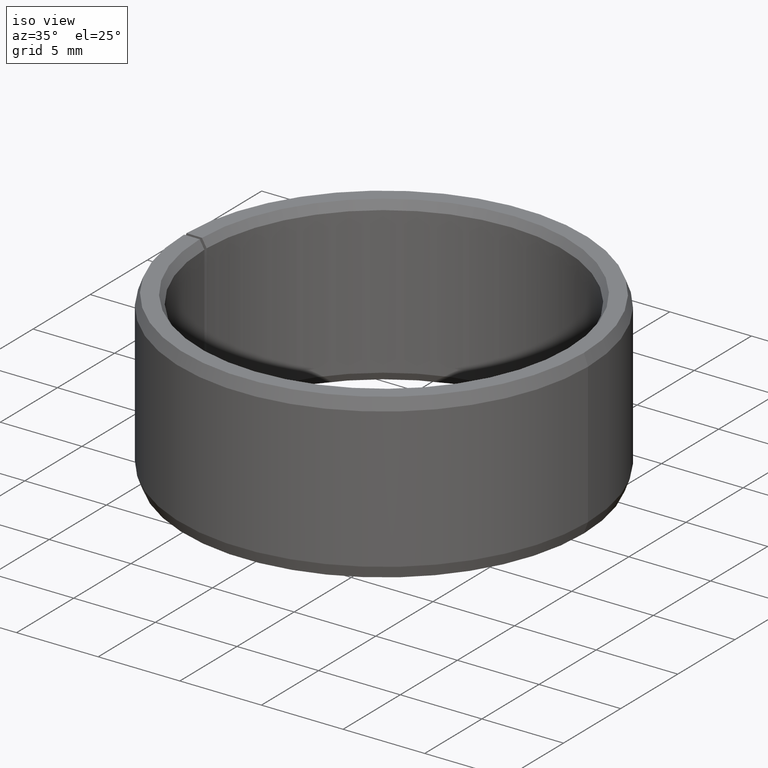
[diagram: clean part render]
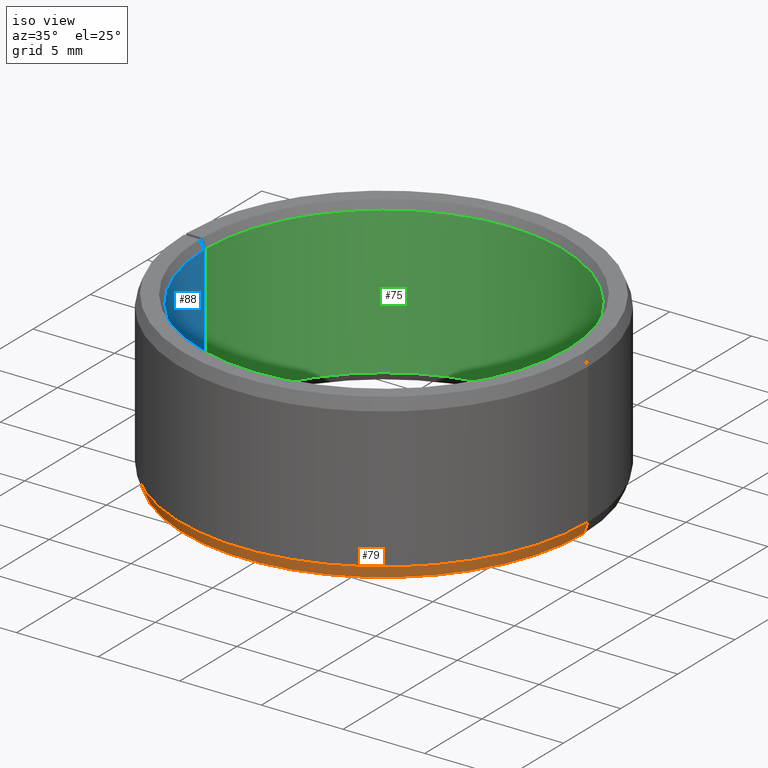
[diagram: same view with three faces highlighted in distinct colors, each labeled with its STEP entity id]
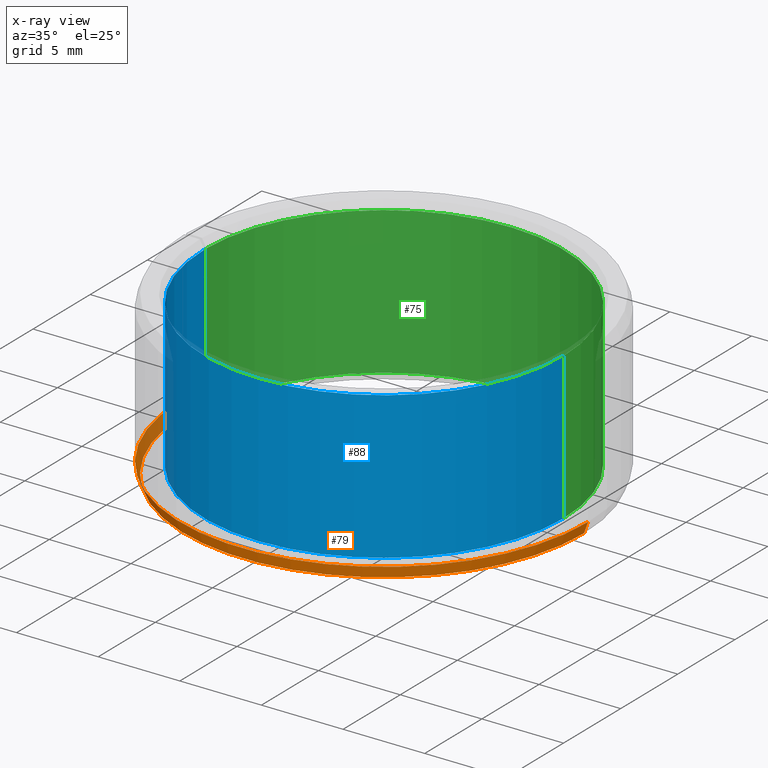
[diagram: x-ray of the same camera — body ghosted, the three highlighted faces saturated]
A machine part, iso view with three faces highlighted in distinct colors.
The next image is the same camera in x-ray (body ghosted, the three faces saturated) — at least one of them is partly hidden behind the body in this view.
Their STEP definitions:

[orange] entity #79 — the highlighted conical surface has half-angle 20 deg.
#79=ADVANCED_FACE('',(#100),#101,.T.);
#100=FACE_OUTER_BOUND('',#132,.T.);
#101=CONICAL_SURFACE('',#133,12.3726104180068,0.349065850398867);
#132=EDGE_LOOP('',(#184,#185,#186,#187));
#133=AXIS2_PLACEMENT_3D('',#188,#189,#190);
#184=ORIENTED_EDGE('',*,*,#294,.F.);
#185=ORIENTED_EDGE('',*,*,#293,.F.);
#186=ORIENTED_EDGE('',*,*,#295,.F.);
#187=ORIENTED_EDGE('',*,*,#296,.T.);
#188=CARTESIAN_POINT('',(5.45351470700869E-016,-9.50989063128085E-016,0.350000000000002));
#189=DIRECTION('',(5.48707263966375E-016,-6.09939603923743E-016,1.0));
#190=DIRECTION('',(-1.0,1.89882151931499E-015,5.48707263966376E-016));
#293=EDGE_CURVE('',#341,#339,#343,.T.);
#294=EDGE_CURVE('',#339,#344,#345,.T.);
#295=EDGE_CURVE('',#346,#341,#347,.T.);
#296=EDGE_CURVE('',#346,#344,#348,.T.);
#339=VERTEX_POINT('',#407);
#341=VERTEX_POINT('',#410);
#343=CIRCLE('',#413,12.5);
#344=VERTEX_POINT('',#414);
#345=LINE('',#415,#416);
#346=VERTEX_POINT('',#417);
#347=LINE('',#418,#419);
#348=CIRCLE('',#420,12.2452208360137);
#407=CARTESIAN_POINT('',(12.5,-2.64305454148729E-014,0.699999999999994));
#410=CARTESIAN_POINT('',(-12.5,2.29370511610791E-014,0.700000000000008));
#413=AXIS2_PLACEMENT_3D('',#487,#488,#489);
#414=CARTESIAN_POINT('',(12.2452208360137,-2.54886060841094E-014,-5.33126284081167E-015));
#415=CARTESIAN_POINT('',(12.3726104180068,-2.59595757494912E-014,0.349999999999995));
#416=VECTOR('',#490,1.0);
#417=CARTESIAN_POINT('',(-12.2452208360137,2.29661114886094E-014,8.03760149313898E-015));
#418=CARTESIAN_POINT('',(-12.2452208360137,2.29661114886094E-014,8.03760149313898E-015));
#419=VECTOR('',#491,10.0);
#420=AXIS2_PLACEMENT_3D('',#492,#493,#494);
#487=CARTESIAN_POINT('',(7.373990130891E-016,-1.14303660551632E-015,0.700000000000001));
#488=DIRECTION('',(5.48707263966375E-016,-6.09939603923743E-016,1.0));
#489=DIRECTION('',(-1.0,1.89882151931499E-015,5.48707263966376E-016));
#490=DIRECTION('',(-0.342020143325671,1.26447634049497E-015,-0.939692620785908));
#491=DIRECTION('',(-0.34202014332567,1.33819041265149E-016,0.939692620785908));
#492=CARTESIAN_POINT('',(3.53303928312638E-016,-7.58941520739854E-016,1.40055521273414E-015));
#493=DIRECTION('',(5.48707263966375E-016,-6.09939603923743E-016,1.0));
#494=DIRECTION('',(-1.0,1.89882151931499E-015,5.48707263966376E-016));

[blue] entity #88 — the highlighted cylindrical surface (partial cylindrical patch) has radius 11 mm, axis along (0, -0, 1).
#88=ADVANCED_FACE('',(#118),#119,.F.);
#118=FACE_OUTER_BOUND('',#150,.T.);
#119=CYLINDRICAL_SURFACE('',#151,11.0);
#150=EDGE_LOOP('',(#251,#252,#253,#254));
#151=AXIS2_PLACEMENT_3D('',#255,#256,#257);
#251=ORIENTED_EDGE('',*,*,#280,.T.);
#252=ORIENTED_EDGE('',*,*,#302,.F.);
#253=ORIENTED_EDGE('',*,*,#317,.F.);
#254=ORIENTED_EDGE('',*,*,#315,.T.);
#255=CARTESIAN_POINT('',(3.09684024814451E-015,-3.50247784057173E-015,5.0));
#256=DIRECTION('',(5.48707263966375E-016,-6.09939603923743E-016,1.0));
#257=DIRECTION('',(-1.0,1.89882151931499E-015,5.48707263966376E-016));
#280=EDGE_CURVE('',#318,#319,#320,.T.);
#302=EDGE_CURVE('',#356,#319,#358,.T.);
#315=EDGE_CURVE('',#376,#318,#377,.T.);
#317=EDGE_CURVE('',#376,#356,#379,.T.);
#318=VERTEX_POINT('',#380);
#319=VERTEX_POINT('',#381);
#320=LINE('',#382,#383);
#356=VERTEX_POINT('',#430);
#358=CIRCLE('',#433,11.0);
#376=VERTEX_POINT('',#458);
#377=CIRCLE('',#459,11.0);
#379=LINE('',#462,#463);
#380=CARTESIAN_POINT('',(11.0,-2.8190500634958E-014,9.49999999999999));
#381=CARTESIAN_POINT('',(11.0,-2.32827514292393E-014,0.499999999999996));
#382=CARTESIAN_POINT('',(11.0,-2.57366260320987E-014,4.99999999999999));
#383=VECTOR('',#464,1.0);
#430=CARTESIAN_POINT('',(-11.0,2.0956542659611E-014,0.500000000000008));
#433=AXIS2_PLACEMENT_3D('',#504,#505,#506);
#458=CARTESIAN_POINT('',(-11.0,1.60181772839136E-014,9.50000000000001));
#459=AXIS2_PLACEMENT_3D('',#529,#530,#531);
#462=CARTESIAN_POINT('',(-11.0,1.60181772839136E-014,9.50000000000001));
#463=VECTOR('',#533,10.0);
#464=DIRECTION('',(-5.48707263966375E-016,6.09939603923743E-016,-1.0));
#504=CARTESIAN_POINT('',(6.27657560295825E-016,-1.03329515272304E-015,0.500000000000002));
#505=DIRECTION('',(5.48707263966375E-016,-6.09939603923743E-016,1.0));
#506=DIRECTION('',(-1.0,1.89882151931499E-015,5.48707263966376E-016));
#529=CARTESIAN_POINT('',(5.56602293599319E-015,-5.97166052842042E-015,9.5));
#530=DIRECTION('',(5.48707263966375E-016,-6.09939603923743E-016,1.0));
#531=DIRECTION('',(-1.0,1.89882151931499E-015,5.48707263966376E-016));
#533=DIRECTION('',(-5.48707263966375E-016,5.48707263966376E-016,-1.0));

[green] entity #75 — the highlighted cylindrical surface (partial cylindrical patch) has radius 11 mm, axis along (0, -0, 1).
#75=ADVANCED_FACE('',(#92),#93,.F.);
#92=FACE_OUTER_BOUND('',#124,.T.);
#93=CYLINDRICAL_SURFACE('',#125,11.0);
#124=EDGE_LOOP('',(#156,#157,#158,#159));
#125=AXIS2_PLACEMENT_3D('',#160,#161,#162);
#156=ORIENTED_EDGE('',*,*,#280,.F.);
#157=ORIENTED_EDGE('',*,*,#281,.T.);
#158=ORIENTED_EDGE('',*,*,#282,.T.);
#159=ORIENTED_EDGE('',*,*,#283,.F.);
#160=CARTESIAN_POINT('',(3.09684024814451E-015,-3.50247784057173E-015,5.0));
#161=DIRECTION('',(5.48707263966375E-016,-6.09939603923743E-016,1.0));
#162=DIRECTION('',(-1.0,1.89882151931499E-015,5.48707263966376E-016));
#280=EDGE_CURVE('',#318,#319,#320,.T.);
#281=EDGE_CURVE('',#318,#321,#322,.T.);
#282=EDGE_CURVE('',#321,#323,#324,.T.);
#283=EDGE_CURVE('',#319,#323,#325,.T.);
#318=VERTEX_POINT('',#380);
#319=VERTEX_POINT('',#381);
#320=LINE('',#382,#383);
#321=VERTEX_POINT('',#384);
#322=CIRCLE('',#385,11.0);
#323=VERTEX_POINT('',#386);
#324=LINE('',#387,#388);
#325=CIRCLE('',#389,11.0);
#380=CARTESIAN_POINT('',(11.0,-2.8190500634958E-014,9.49999999999999));
#381=CARTESIAN_POINT('',(11.0,-2.32827514292393E-014,0.499999999999996));
#382=CARTESIAN_POINT('',(11.0,-2.57366260320987E-014,4.99999999999999));
#383=VECTOR('',#464,1.0);
#384=CARTESIAN_POINT('',(-10.9983246467203,0.191976470810136,9.50000000000001));
#385=AXIS2_PLACEMENT_3D('',#465,#466,#467);
#386=CARTESIAN_POINT('',(-10.9983246467203,0.191976470810141,0.500000000000008));
#387=CARTESIAN_POINT('',(-10.9983246467203,0.191976470810136,9.50000000000001));
#388=VECTOR('',#468,10.0);
#389=AXIS2_PLACEMENT_3D('',#469,#470,#471);
#464=DIRECTION('',(-5.48707263966375E-016,6.09939603923743E-016,-1.0));
#465=CARTESIAN_POINT('',(5.56602293599319E-015,-5.97166052842042E-015,9.5));
#466=DIRECTION('',(5.48707263966375E-016,-6.09939603923743E-016,1.0));
#467=DIRECTION('',(-1.0,1.89882151931499E-015,5.48707263966376E-016));
#468=DIRECTION('',(-5.49775915650417E-016,5.48716589948337E-016,-1.0));
#469=CARTESIAN_POINT('',(6.27657560295825E-016,-1.03329515272304E-015,0.500000000000002));
#470=DIRECTION('',(5.48707263966375E-016,-6.09939603923743E-016,1.0));
#471=DIRECTION('',(-1.0,1.89882151931499E-015,5.48707263966376E-016));